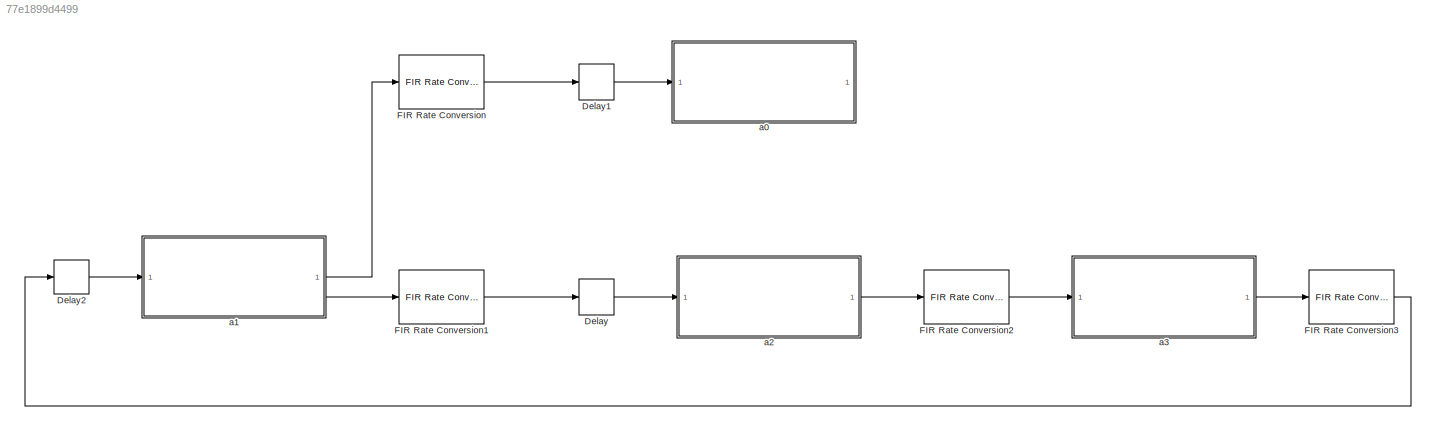
MODEL slx_77e1899d4499
KIND model
CONFIG AbsTol = auto
CONFIG EnableMultiTasking = off
CONFIG FixedStep = auto
CONFIG MaxStep = auto
CONFIG MinStep = auto
CONFIG RelTol = 1e-3
CONFIG SampleTimeConstraint = Unconstrained
CONFIG SolverName = VariableStepAuto
CONFIG StartTime = 0.0
CONFIG StopTime = 10.0
BLOCK [Delay] Delay
  InitialCondition = 1
  InputPortMap = u0
BLOCK [Delay] Delay1
  DelayLength = 4
  InitialCondition = 3
  InputPortMap = u0
BLOCK [Delay] Delay2
  DelayLength = 4
  InitialCondition = 2
  InputPortMap = u0
BLOCK [Reference] FIR Rate Conversion  REF=dspmlti4/FIR Rate
Conversion
  SourceBlock = dspmlti4/FIR Rate\nConversion
  SourceType = FIR Rate Conversion
BLOCK [Reference] FIR Rate Conversion1  REF=dspmlti4/FIR Rate
Conversion
  SourceBlock = dspmlti4/FIR Rate\nConversion
  SourceType = FIR Rate Conversion
BLOCK [Reference] FIR Rate Conversion2  REF=dspmlti4/FIR Rate
Conversion
  SourceBlock = dspmlti4/FIR Rate\nConversion
  SourceType = FIR Rate Conversion
BLOCK [Reference] FIR Rate Conversion3  REF=dspmlti4/FIR Rate
Conversion
  SourceBlock = dspmlti4/FIR Rate\nConversion
  SourceType = FIR Rate Conversion
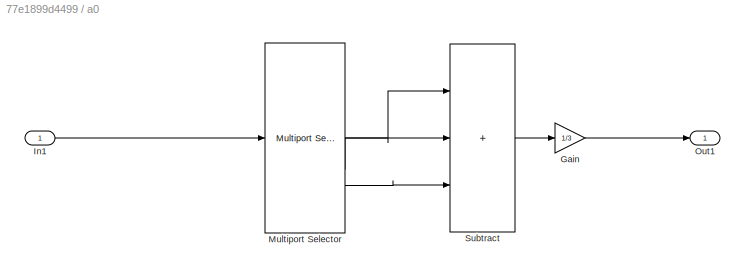
BLOCK [SubSystem] a0
  AutoFrameSizeCalculation = on
BLOCK [Gain] a0/Gain
  Gain = 1/3
BLOCK [Inport] a0/In1
BLOCK [Reference] a0/Multiport Selector  REF=dspindex/Multiport
Selector
  SourceBlock = dspindex/Multiport\nSelector
  SourceType = Multiport Selector
BLOCK [Outport] a0/Out1
BLOCK [Sum] a0/Subtract
  IconShape = rectangular
  Inputs = +++
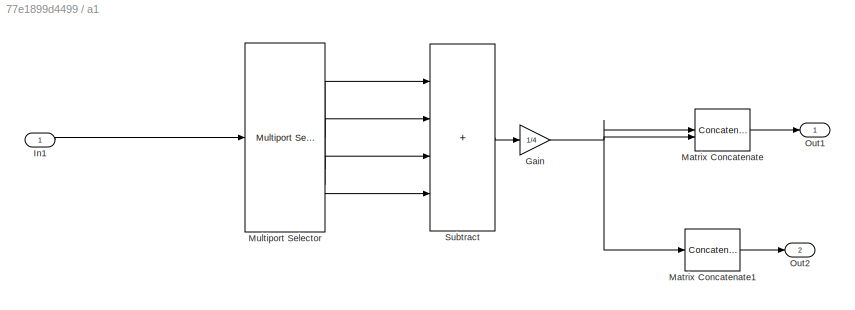
BLOCK [SubSystem] a1
  AutoFrameSizeCalculation = on
BLOCK [Gain] a1/Gain
  Gain = 1/4
BLOCK [Inport] a1/In1
BLOCK [Concatenate] a1/Matrix Concatenate
  ConcatenateDimension = 2
BLOCK [Concatenate] a1/Matrix Concatenate1
  ConcatenateDimension = 2
  NumInputs = 1
BLOCK [Reference] a1/Multiport Selector  REF=dspindex/Multiport
Selector
  SourceBlock = dspindex/Multiport\nSelector
  SourceType = Multiport Selector
BLOCK [Outport] a1/Out1
  VectorParamsAs1DForOutWhenUnconnected = off
BLOCK [Outport] a1/Out2
  Port = 2
  VectorParamsAs1DForOutWhenUnconnected = off
BLOCK [Sum] a1/Subtract
  IconShape = rectangular
  Inputs = ++++
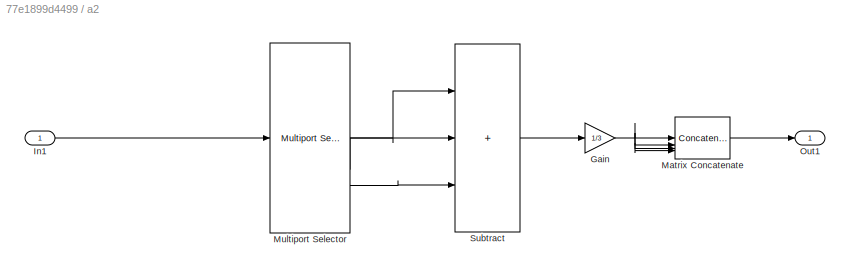
BLOCK [SubSystem] a2
  AutoFrameSizeCalculation = on
BLOCK [Gain] a2/Gain
  Gain = 1/3
BLOCK [Inport] a2/In1
BLOCK [Concatenate] a2/Matrix Concatenate
  ConcatenateDimension = 2
  NumInputs = 4
BLOCK [Reference] a2/Multiport Selector  REF=dspindex/Multiport
Selector
  SourceBlock = dspindex/Multiport\nSelector
  SourceType = Multiport Selector
BLOCK [Outport] a2/Out1
  VectorParamsAs1DForOutWhenUnconnected = off
BLOCK [Sum] a2/Subtract
  IconShape = rectangular
  Inputs = +++
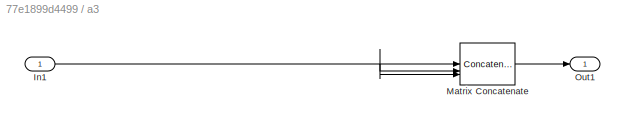
BLOCK [SubSystem] a3
  AutoFrameSizeCalculation = on
BLOCK [Inport] a3/In1
BLOCK [Concatenate] a3/Matrix Concatenate
  ConcatenateDimension = 2
  NumInputs = 3
BLOCK [Outport] a3/Out1
  VectorParamsAs1DForOutWhenUnconnected = off
LINE Delay1:1 -> a0:1
LINE Delay2:1 -> a1:1
LINE Delay:1 -> a2:1
LINE FIR Rate Conversion1:1 -> Delay:1
LINE FIR Rate Conversion2:1 -> a3:1
LINE FIR Rate Conversion3:1 -> Delay2:1
LINE FIR Rate Conversion:1 -> Delay1:1
LINE a0/Gain:1 -> a0/Out1:1
LINE a0/In1:1 -> a0/Multiport Selector:1
LINE a0/Multiport Selector:1 -> a0/Subtract:1
LINE a0/Multiport Selector:2 -> a0/Subtract:2
LINE a0/Multiport Selector:3 -> a0/Subtract:3
LINE a0/Subtract:1 -> a0/Gain:1
NET a1/Gain:1 -> a1/Matrix Concatenate1:1, a1/Matrix Concatenate:1, a1/Matrix Concatenate:2
LINE a1/In1:1 -> a1/Multiport Selector:1
LINE a1/Matrix Concatenate1:1 -> a1/Out2:1
LINE a1/Matrix Concatenate:1 -> a1/Out1:1
LINE a1/Multiport Selector:1 -> a1/Subtract:1
LINE a1/Multiport Selector:2 -> a1/Subtract:2
LINE a1/Multiport Selector:3 -> a1/Subtract:3
LINE a1/Multiport Selector:4 -> a1/Subtract:4
LINE a1/Subtract:1 -> a1/Gain:1
LINE a1:1 -> FIR Rate Conversion:1
LINE a1:2 -> FIR Rate Conversion1:1
NET a2/Gain:1 -> a2/Matrix Concatenate:1, a2/Matrix Concatenate:2, a2/Matrix Concatenate:3, a2/Matrix Concatenate:4
LINE a2/In1:1 -> a2/Multiport Selector:1
LINE a2/Matrix Concatenate:1 -> a2/Out1:1
LINE a2/Multiport Selector:1 -> a2/Subtract:1
LINE a2/Multiport Selector:2 -> a2/Subtract:2
LINE a2/Multiport Selector:3 -> a2/Subtract:3
LINE a2/Subtract:1 -> a2/Gain:1
LINE a2:1 -> FIR Rate Conversion2:1
NET a3/In1:1 -> a3/Matrix Concatenate:1, a3/Matrix Concatenate:2, a3/Matrix Concatenate:3
LINE a3/Matrix Concatenate:1 -> a3/Out1:1
LINE a3:1 -> FIR Rate Conversion3:1
note: NET lines group one-source signal fan-out (src -> all destinations, sorted); 1:1 wires keep LINE
